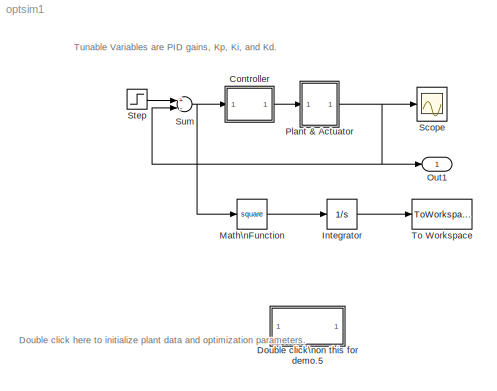
MODEL optsim1
KIND model
CONFIG PostLoadFcn = optsiminit
CONFIG PreLoadFcn = a1=3; a2=43;
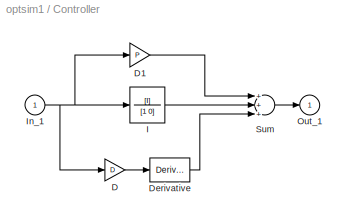
BLOCK [SubSystem] Controller
  Ports = [1, 1]
  RequestExecContextInheritance = off
  SID = 1
BLOCK [Gain] Controller/D
  Gain = D
  SID = 3
BLOCK [Gain] Controller/D1
  Gain = P
  SID = 4
BLOCK [Derivative] Controller/Derivative
  SID = 5
BLOCK [TransferFcn] Controller/I
  Denominator = [1 0]
  Numerator = [I]
  SID = 6
BLOCK [Inport] Controller/In_1
  IconDisplay = Port number
  SID = 2
BLOCK [Outport] Controller/Out_1
  IconDisplay = Port number
  InitialOutput = 0
  SID = 8
BLOCK [Sum] Controller/Sum
  Inputs = +++
  Ports = [3, 1]
  SID = 7
BLOCK [SubSystem] Double click\non this for demo.5
  OpenFcn = optsiminit
  Ports = []
  RequestExecContextInheritance = off
  SID = 9
BLOCK [Integrator] Integrator
  Ports = [1, 1]
  SID = 10
BLOCK [Math] Math\nFunction
  Operator = square
  Ports = [1, 1]
  SID = 11
BLOCK [Outport] Out1
  IconDisplay = Port number
  SID = 23
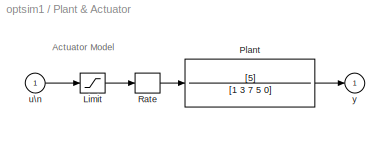
BLOCK [SubSystem] Plant & Actuator
  Ports = [1, 1]
  RequestExecContextInheritance = off
  SID = 12
BLOCK [Saturate] Plant & Actuator/Limit
  InputPortMap = u0
  LowerLimit = -2
  Ports = [1, 1]
  SID = 14
  UpperLimit = 2
BLOCK [TransferFcn] Plant & Actuator/Plant
  Denominator = [1 3 7 5 0]
  Numerator = [5]
  SID = 15
BLOCK [RateLimiter] Plant & Actuator/Rate
  FallingSlewLimit = -0.8
  RisingSlewLimit = 0.8
  SID = 16
BLOCK [Inport] Plant & Actuator/u\n
  IconDisplay = Port number
  SID = 13
BLOCK [Outport] Plant & Actuator/y
  IconDisplay = Port number
  InitialOutput = 0
  SID = 17
BLOCK [Scope] Scope
  Floating = off
  NumInputPorts = 1
  Ports = [1]
  SID = 19
  ScopeSpecificationString = C++SS(StrPVP('Location','[189, 122, 662, 429]'),StrPVP('Open','off'),StrPVP('TickLabels','on'),StrPVP('ZoomMode','xonly'),MxPVP('AxesTitles',54,'struct(''axes1'',''Closed Loop Response'')'),StrPVP('TimeRange','100'),StrPVP('YMin','0'),StrPVP('YMax','1.4'),StrPVP('DataFormat','StructureWithTime'),StrPVP('BlockParamSampleTime','0'),StrPVP('LimitDataPoints','on'),StrPVP('Decimation','1'),StrPVP('Bloc...<+26ch>
BLOCK [Step] Step
  SID = 20
  SampleTime = 0
  Time = 0
BLOCK [Sum] Sum
  Inputs = +-
  Ports = [2, 1]
  SID = 21
BLOCK [ToWorkspace] To Workspace
  MaxDataPoints = 1
  Ports = [1]
  SID = 22
  SampleTime = -1
  VariableName = e2
ANNOTATION (root): Double click here to initialize plant data and optimization parameters.
ANNOTATION (root): Tunable Variables are PID gains, Kp, Ki, and Kd.
ANNOTATION Plant & Actuator: Actuator Model
LINE Controller/D1:1 -> Controller/Sum:1
LINE Controller/D:1 -> Controller/Derivative:1
LINE Controller/Derivative:1 -> Controller/Sum:3
LINE Controller/I:1 -> Controller/Sum:2
NET Controller/In_1:1 -> Controller/D1:1, Controller/D:1, Controller/I:1
LINE Controller/Sum:1 -> Controller/Out_1:1
LINE Controller:1 -> Plant & Actuator:1
LINE Integrator:1 -> To Workspace:1
LINE Math\nFunction:1 -> Integrator:1
LINE Plant & Actuator/Limit:1 -> Plant & Actuator/Rate:1
LINE Plant & Actuator/Plant:1 -> Plant & Actuator/y:1
LINE Plant & Actuator/Rate:1 -> Plant & Actuator/Plant:1
LINE Plant & Actuator/u\n:1 -> Plant & Actuator/Limit:1
NET Plant & Actuator:1 -> Out1:1, Scope:1, Sum:2
LINE Step:1 -> Sum:1
NET Sum:1 -> Controller:1, Math\nFunction:1
note: NET lines group one-source signal fan-out (src -> all destinations, sorted); 1:1 wires keep LINE
